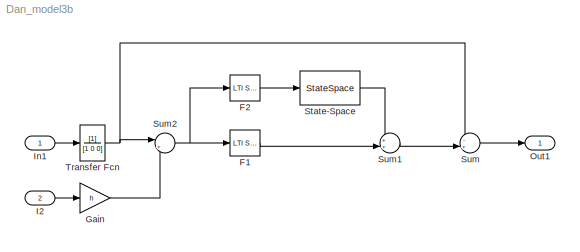
MODEL Dan_model3b
KIND model
BLOCK [Reference] F1  REF=cstblocks/LTI System
  IC = []
  Ports = [1, 1]
  SID = 40
  SourceBlock = cstblocks/LTI System
  SourceType = LTI Block
  sys = F1
BLOCK [Reference] F2  REF=cstblocks/LTI System
  IC = []
  Ports = [1, 1]
  SID = 41
  SourceBlock = cstblocks/LTI System
  SourceType = LTI Block
  sys = F2
BLOCK [Gain] Gain
  Gain = h
  OutDataTypeStr = Inherit: Inherit via internal rule
  ParamDataTypeStr = Inherit: Inherit via internal rule
  SID = 42
  SaturateOnIntegerOverflow = off
BLOCK [Inport] I2
  IconDisplay = Port number
  Port = 2
  SID = 38
BLOCK [Inport] In1
  IconDisplay = Port number
  SID = 37
BLOCK [Outport] Out1
  IconDisplay = Port number
  SID = 47
BLOCK [StateSpace] State-Space
  A = K.A
  B = K.B
  C = K.C
  D = K.D
  SID = 7
BLOCK [Sum] Sum
  IconShape = round
  InputSameDT = off
  Inputs = -+|
  OutDataTypeStr = Inherit: Inherit via internal rule
  Ports = [2, 1]
  SID = 43
  SaturateOnIntegerOverflow = off
BLOCK [Sum] Sum1
  IconShape = round
  InputSameDT = off
  Inputs = ++|
  OutDataTypeStr = Inherit: Inherit via internal rule
  Ports = [2, 1]
  SID = 44
  SaturateOnIntegerOverflow = off
BLOCK [Sum] Sum2
  IconShape = round
  InputSameDT = off
  Inputs = |++
  OutDataTypeStr = Inherit: Inherit via internal rule
  Ports = [2, 1]
  SID = 45
  SaturateOnIntegerOverflow = off
BLOCK [TransferFcn] Transfer Fcn
  Denominator = [1 0 0]
  SID = 46
LINE F1:1 -> Sum1:2
LINE F2:1 -> State-Space:1
LINE Gain:1 -> Sum2:2
LINE I2:1 -> Gain:1
LINE In1:1 -> Transfer Fcn:1
LINE State-Space:1 -> Sum1:1
LINE Sum1:1 -> Sum:2
NET Sum2:1 -> F1:1, F2:1
LINE Sum:1 -> Out1:1
NET Transfer Fcn:1 -> Sum2:1, Sum:1
note: NET lines group one-source signal fan-out (src -> all destinations, sorted); 1:1 wires keep LINE
